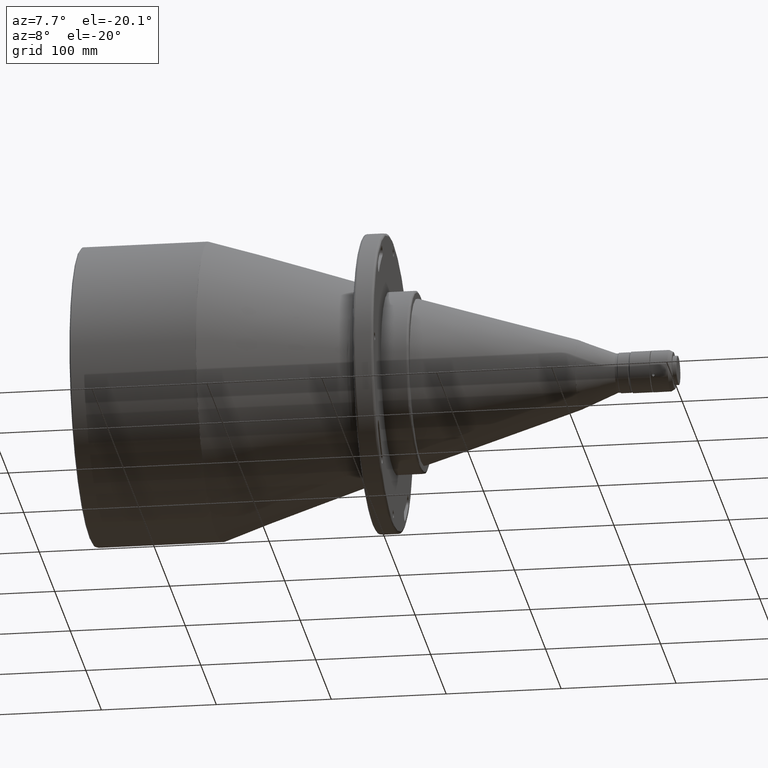
[diagram: clean part render]
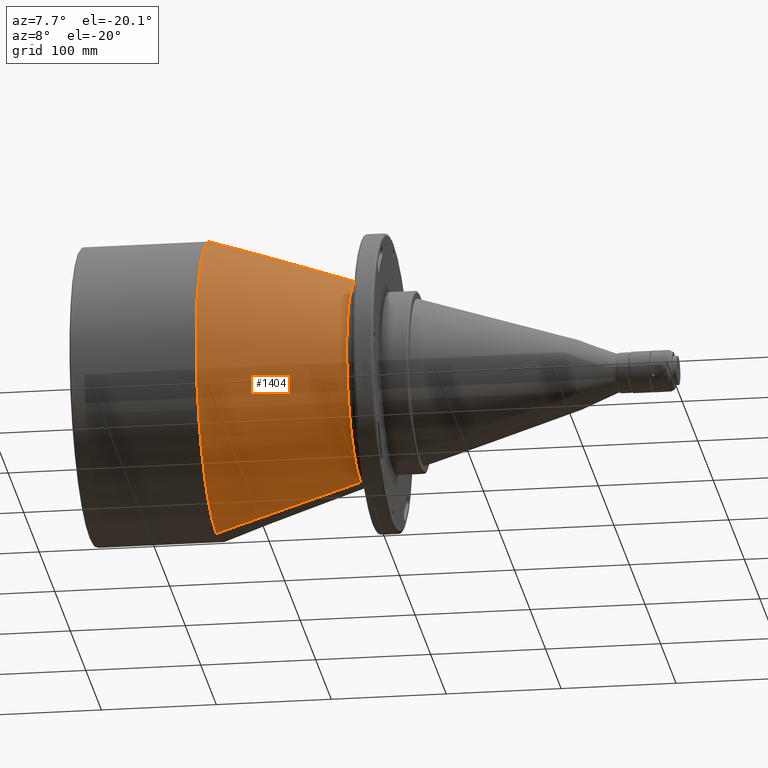
[diagram: same view with one face highlighted and labeled with its STEP entity id]
A machine part, auxiliary view. The second image highlights one B-rep face of the part: STEP entity #1404.
In plain terms, the highlighted conical surface has half-angle 18 deg.
Its self-contained STEP definition (entity closure, byte-faithful):
#3 = DIRECTION ( 'NONE',  ( 0.0000000000000000000, 0.0000000000000000000, 1.000000000000000000 ) ) ;
#73 = EDGE_CURVE ( 'NONE', #739, #585, #2544, .T. ) ;
#251 = CARTESIAN_POINT ( 'NONE',  ( -20.37213595500000100, 1.091993496140308500E-014, -89.16803578800001200 ) ) ;
#395 = DIRECTION ( 'NONE',  ( -1.000000000000000000, 0.0000000000000000000, 0.0000000000000000000 ) ) ;
#459 = EDGE_CURVE ( 'NONE', #739, #581, #1452, .T. ) ;
#477 = EDGE_CURVE ( 'NONE', #585, #774, #2457, .T. ) ;
#498 = ORIENTED_EDGE ( 'NONE', *, *, #459, .T. ) ;
#581 = VERTEX_POINT ( 'NONE', #2411 ) ;
#585 = VERTEX_POINT ( 'NONE', #2695 ) ;
#632 = ORIENTED_EDGE ( 'NONE', *, *, #477, .F. ) ;
#639 = DIRECTION ( 'NONE',  ( -1.000000000000000000, 1.945454400366094100E-017, -0.0000000000000000000 ) ) ;
#737 = ORIENTED_EDGE ( 'NONE', *, *, #73, .F. ) ;
#739 = VERTEX_POINT ( 'NONE', #1395 ) ;
#769 = CARTESIAN_POINT ( 'NONE',  ( -20.37213595500000100, 0.0000000000000000000, 0.0000000000000000000 ) ) ;
#774 = VERTEX_POINT ( 'NONE', #3110 ) ;
#824 = AXIS2_PLACEMENT_3D ( 'NONE', #2402, #639, #3163 ) ;
#905 = CARTESIAN_POINT ( 'NONE',  ( -145.8893674460001100, 0.0000000000000000000, 0.0000000000000000000 ) ) ;
#925 = CARTESIAN_POINT ( 'NONE',  ( -20.37213595500000100, 0.0000000000000000000, 89.16803578800001200 ) ) ;
#1128 = LINE ( 'NONE', #925, #1369 ) ;
#1300 = EDGE_LOOP ( 'NONE', ( #737, #498, #2217, #632 ) ) ;
#1369 = VECTOR ( 'NONE', #2191, 1000.000000000000000 ) ;
#1395 = CARTESIAN_POINT ( 'NONE',  ( -20.37213595544576300, -2.743300478114483500E-008, -89.16803578819077800 ) ) ;
#1404 = ADVANCED_FACE ( 'NONE', ( #1952 ), #1485, .T. ) ;
#1427 = AXIS2_PLACEMENT_3D ( 'NONE', #769, #2715, #3 ) ;
#1452 = CIRCLE ( 'NONE', #824, 89.16803578876303500 ) ;
#1485 = CONICAL_SURFACE ( 'NONE', #1427, 89.16803578800001200, 0.3141592653586111600 ) ;
#1813 = AXIS2_PLACEMENT_3D ( 'NONE', #905, #395, #2655 ) ;
#1952 = FACE_OUTER_BOUND ( 'NONE', #1300, .T. ) ;
#2191 = DIRECTION ( 'NONE',  ( -0.9510565162952673300, 0.0000000000000000000, 0.3090169943745972900 ) ) ;
#2217 = ORIENTED_EDGE ( 'NONE', *, *, #2717, .T. ) ;
#2219 = DIRECTION ( 'NONE',  ( -0.9510565162952673300, 3.784366730429862400E-017, -0.3090169943745972900 ) ) ;
#2402 = CARTESIAN_POINT ( 'NONE',  ( -20.37213595678278500, 0.0000000000000000000, 0.0000000000000000000 ) ) ;
#2411 = CARTESIAN_POINT ( 'NONE',  ( -20.37213595566860400, -8.006721473267642600E-009, 89.16803578828616100 ) ) ;
#2457 = CIRCLE ( 'NONE', #1813, 129.9510565159999900 ) ;
#2544 = LINE ( 'NONE', #251, #3060 ) ;
#2655 = DIRECTION ( 'NONE',  ( 6.407545200422027600E-016, 0.0000000000000000000, 1.000000000000000000 ) ) ;
#2695 = CARTESIAN_POINT ( 'NONE',  ( -145.8893674457990000, -1.332670361531058900E-008, -129.9510565161257600 ) ) ;
#2715 = DIRECTION ( 'NONE',  ( -1.000000000000000000, 0.0000000000000000000, 0.0000000000000000000 ) ) ;
#2717 = EDGE_CURVE ( 'NONE', #581, #774, #1128, .T. ) ;
#3060 = VECTOR ( 'NONE', #2219, 1000.000000000000000 ) ;
#3110 = CARTESIAN_POINT ( 'NONE',  ( -145.8893674458325300, -5.834388441359497200E-009, 129.9510565161047900 ) ) ;
#3163 = DIRECTION ( 'NONE',  ( 0.0000000000000000000, -1.000000000000000000, 0.0000000000000000000 ) ) ;